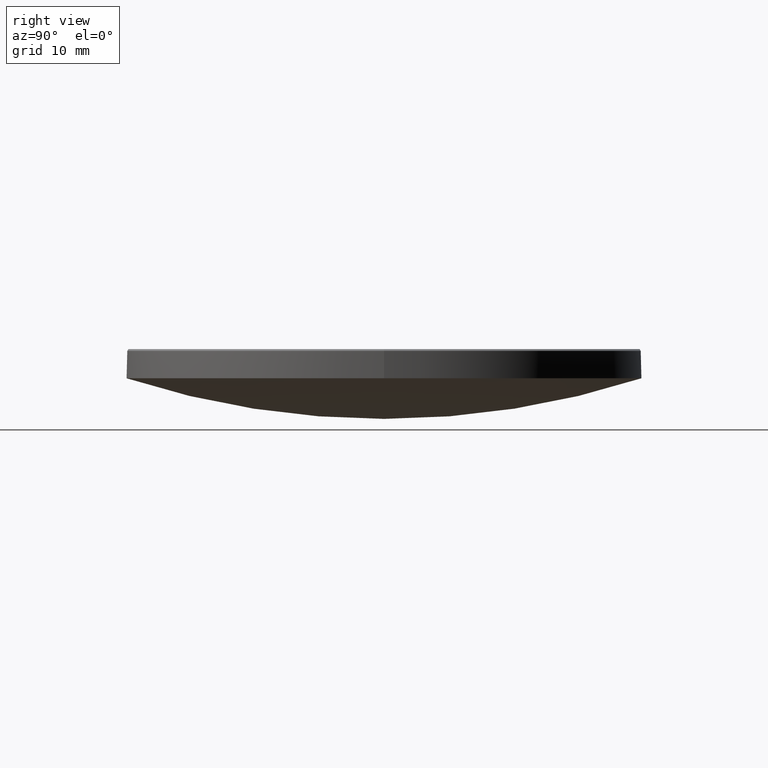
[diagram: clean part render]
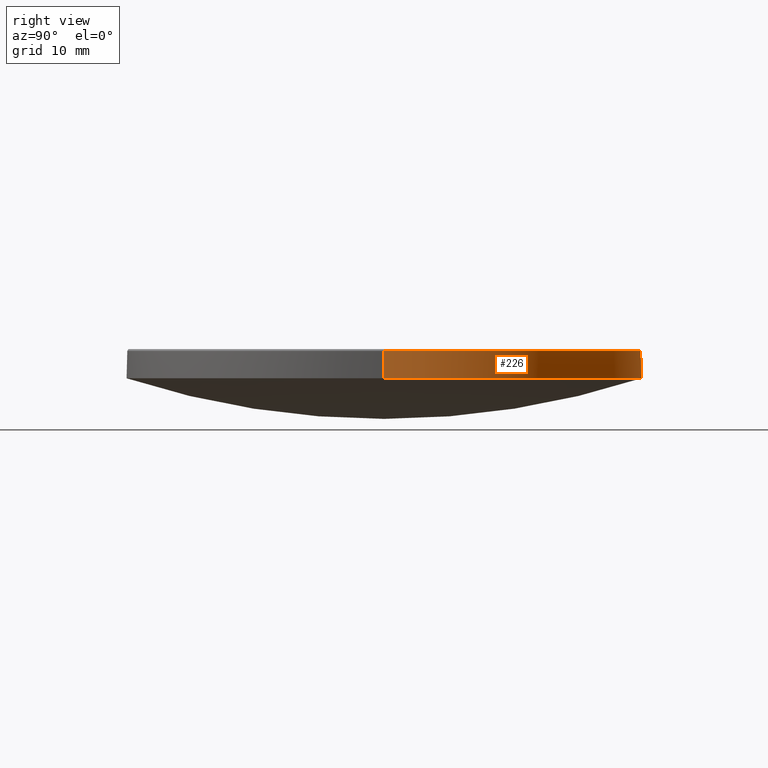
[diagram: same view with one face highlighted and labeled with its STEP entity id]
A machine part, right view. The second image highlights one B-rep face of the part: STEP entity #226.
In plain terms, the highlighted cylindrical surface (partial cylindrical patch) has radius 25.4 mm, axis along (-0, -0, -1).
Its self-contained STEP definition (entity closure, byte-faithful):
#9 = EDGE_CURVE ( 'NONE', #30, #176, #51, .T. ) ;
#14 = CYLINDRICAL_SURFACE ( 'NONE', #44, 25.39999999999999858 ) ;
#16 = VERTEX_POINT ( 'NONE', #31 ) ;
#20 = AXIS2_PLACEMENT_3D ( 'NONE', #65, #111, #154 ) ;
#23 = VERTEX_POINT ( 'NONE', #116 ) ;
#30 = VERTEX_POINT ( 'NONE', #94 ) ;
#31 = CARTESIAN_POINT ( 'NONE',  ( -25.39999999999999858, 0.000000000000000000, 15.69999999999996376 ) ) ;
#32 = EDGE_CURVE ( 'NONE', #207, #30, #91, .T. ) ;
#33 = CARTESIAN_POINT ( 'NONE',  ( 0.000000000000000000, 25.39999999999999147, 12.99999999999999822 ) ) ;
#38 = ORIENTED_EDGE ( 'NONE', *, *, #9, .T. ) ;
#39 = EDGE_CURVE ( 'NONE', #176, #23, #281, .T. ) ;
#44 = AXIS2_PLACEMENT_3D ( 'NONE', #100, #194, #270 ) ;
#47 = DIRECTION ( 'NONE',  ( -0.000000000000000000, -0.000000000000000000, -1.000000000000000000 ) ) ;
#51 = CIRCLE ( 'NONE', #67, 25.39999999999999503 ) ;
#65 = CARTESIAN_POINT ( 'NONE',  ( 0.000000000000000000, 0.000000000000000000, 15.69999999999996376 ) ) ;
#66 = CARTESIAN_POINT ( 'NONE',  ( 25.39999999999999858, 3.110602869834276865E-15, 20.00000000000000000 ) ) ;
#67 = AXIS2_PLACEMENT_3D ( 'NONE', #205, #136, #88 ) ;
#68 = ORIENTED_EDGE ( 'NONE', *, *, #32, .T. ) ;
#82 = ORIENTED_EDGE ( 'NONE', *, *, #39, .T. ) ;
#87 = VECTOR ( 'NONE', #47, 1000.000000000000000 ) ;
#88 = DIRECTION ( 'NONE',  ( 1.000000000000000000, 0.000000000000000000, 0.000000000000000000 ) ) ;
#91 = LINE ( 'NONE', #66, #87 ) ;
#94 = CARTESIAN_POINT ( 'NONE',  ( 25.39999999999999503, 3.110602869834276471E-15, 13.00000000000000000 ) ) ;
#97 = VECTOR ( 'NONE', #103, 1000.000000000000000 ) ;
#100 = CARTESIAN_POINT ( 'NONE',  ( 0.000000000000000000, 0.000000000000000000, 20.00000000000000000 ) ) ;
#101 = EDGE_CURVE ( 'NONE', #16, #207, #217, .T. ) ;
#103 = DIRECTION ( 'NONE',  ( -0.000000000000000000, -0.000000000000000000, -1.000000000000000000 ) ) ;
#111 = DIRECTION ( 'NONE',  ( 0.000000000000000000, 0.000000000000000000, -1.000000000000000000 ) ) ;
#116 = CARTESIAN_POINT ( 'NONE',  ( -25.39999999999999503, 0.000000000000000000, 13.00000000000000000 ) ) ;
#119 = FACE_OUTER_BOUND ( 'NONE', #131, .T. ) ;
#131 = EDGE_LOOP ( 'NONE', ( #260, #68, #38, #82, #277 ) ) ;
#136 = DIRECTION ( 'NONE',  ( -0.000000000000000000, -0.000000000000000000, 1.000000000000000000 ) ) ;
#154 = DIRECTION ( 'NONE',  ( 1.000000000000000000, 0.000000000000000000, 0.000000000000000000 ) ) ;
#157 = AXIS2_PLACEMENT_3D ( 'NONE', #185, #179, #211 ) ;
#176 = VERTEX_POINT ( 'NONE', #33 ) ;
#179 = DIRECTION ( 'NONE',  ( -0.000000000000000000, -0.000000000000000000, 1.000000000000000000 ) ) ;
#185 = CARTESIAN_POINT ( 'NONE',  ( 0.000000000000000000, 0.000000000000000000, 13.00000000000000000 ) ) ;
#194 = DIRECTION ( 'NONE',  ( -0.000000000000000000, -0.000000000000000000, -1.000000000000000000 ) ) ;
#203 = LINE ( 'NONE', #280, #97 ) ;
#205 = CARTESIAN_POINT ( 'NONE',  ( 0.000000000000000000, 0.000000000000000000, 13.00000000000000000 ) ) ;
#207 = VERTEX_POINT ( 'NONE', #252 ) ;
#211 = DIRECTION ( 'NONE',  ( 1.000000000000000000, 0.000000000000000000, 0.000000000000000000 ) ) ;
#217 = CIRCLE ( 'NONE', #20, 25.39999999999999858 ) ;
#226 = ADVANCED_FACE ( 'NONE', ( #119 ), #14, .T. ) ;
#252 = CARTESIAN_POINT ( 'NONE',  ( 25.39999999999999858, 3.110602869834276865E-15, 15.69999999999996376 ) ) ;
#260 = ORIENTED_EDGE ( 'NONE', *, *, #101, .T. ) ;
#269 = EDGE_CURVE ( 'NONE', #16, #23, #203, .T. ) ;
#270 = DIRECTION ( 'NONE',  ( -1.000000000000000000, 0.000000000000000000, 0.000000000000000000 ) ) ;
#277 = ORIENTED_EDGE ( 'NONE', *, *, #269, .F. ) ;
#280 = CARTESIAN_POINT ( 'NONE',  ( -25.39999999999999858, 0.000000000000000000, 20.00000000000000000 ) ) ;
#281 = CIRCLE ( 'NONE', #157, 25.39999999999999503 ) ;